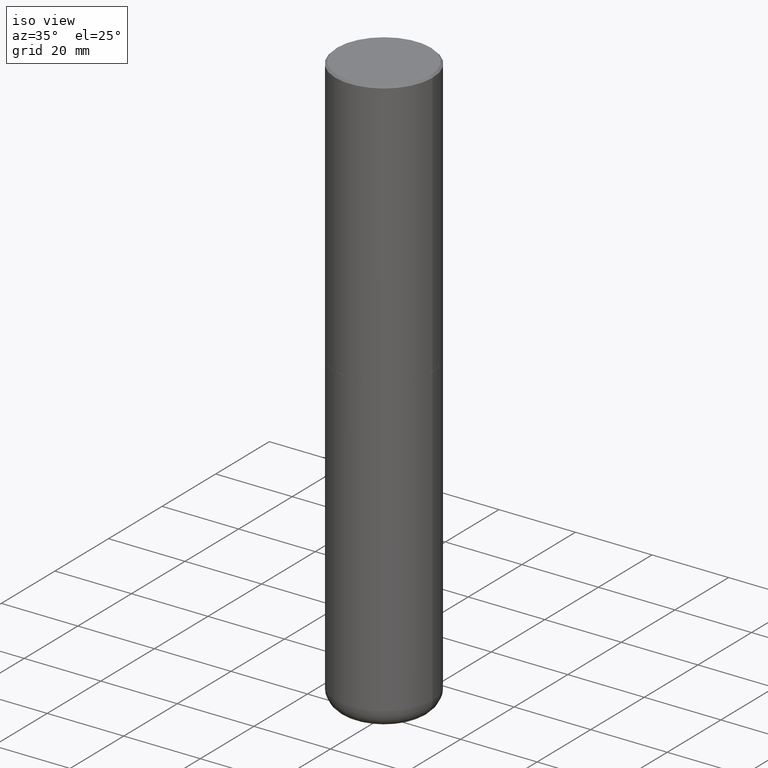
[diagram: clean part render]
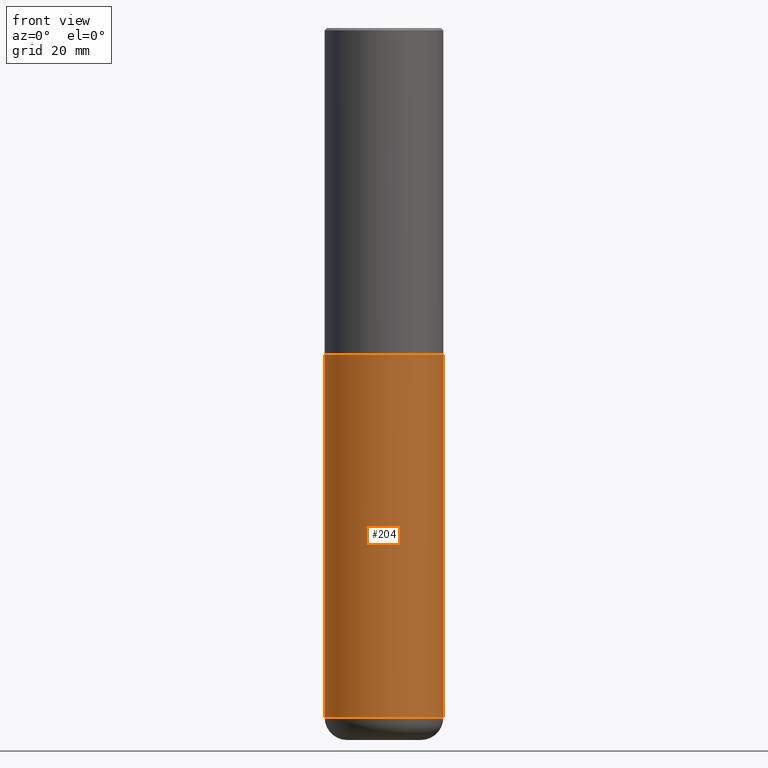
[diagram: tour spotlight — one face highlighted and labeled with its STEP entity id]
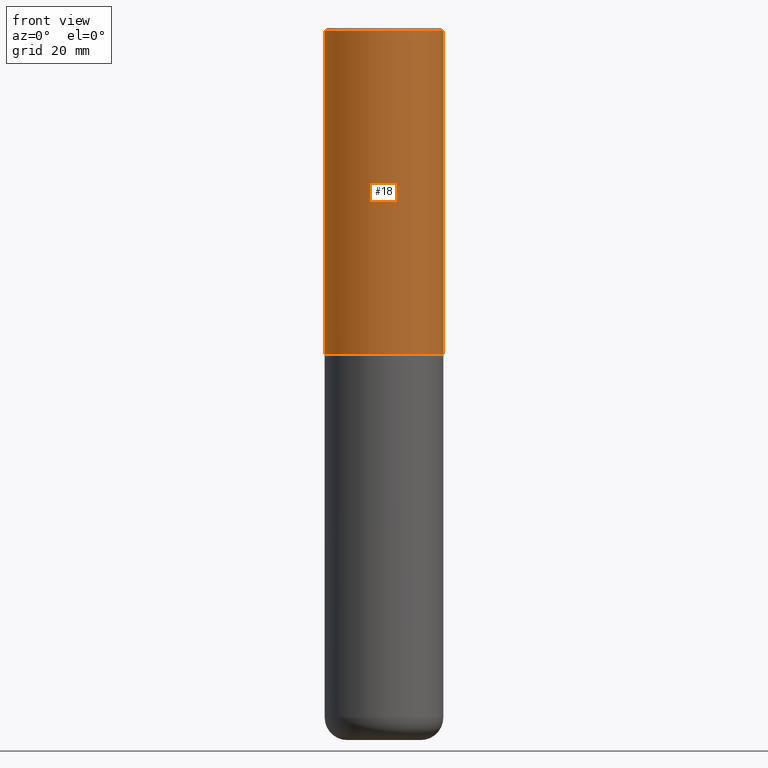
[diagram: tour spotlight — one face highlighted and labeled with its STEP entity id]
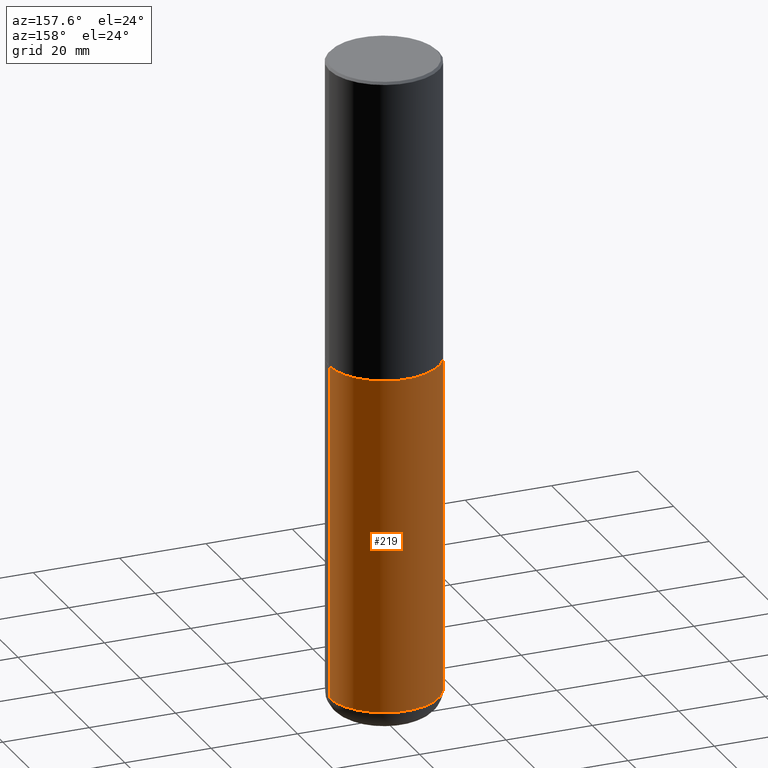
[diagram: tour spotlight — one face highlighted and labeled with its STEP entity id]
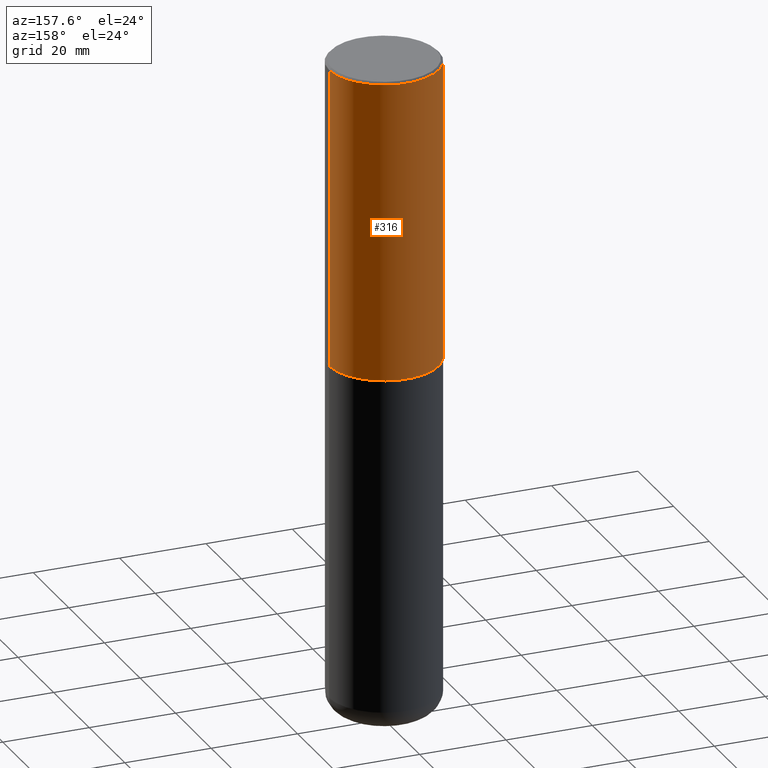
[diagram: tour spotlight — one face highlighted and labeled with its STEP entity id]
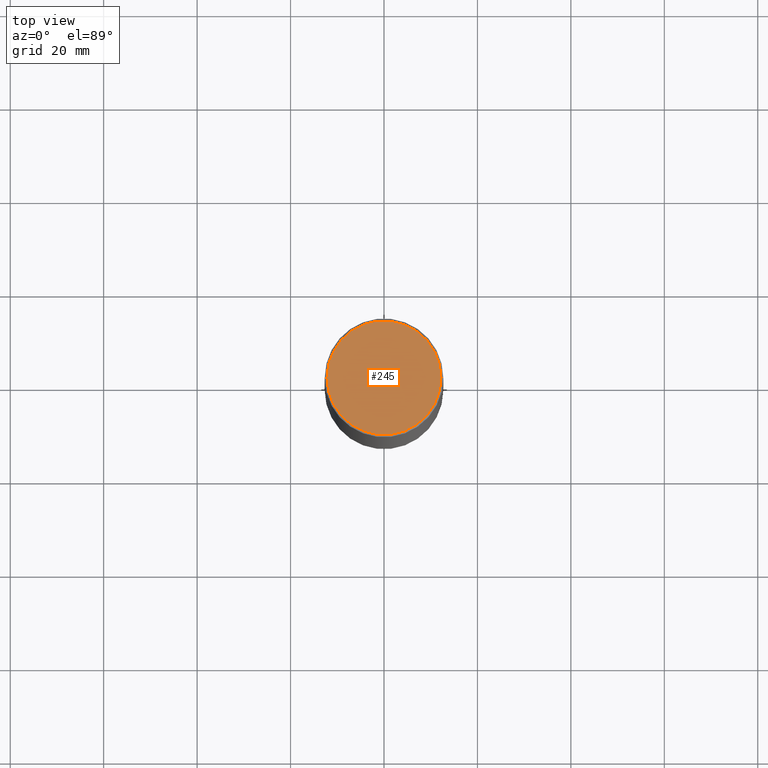
[diagram: tour spotlight — one face highlighted and labeled with its STEP entity id]
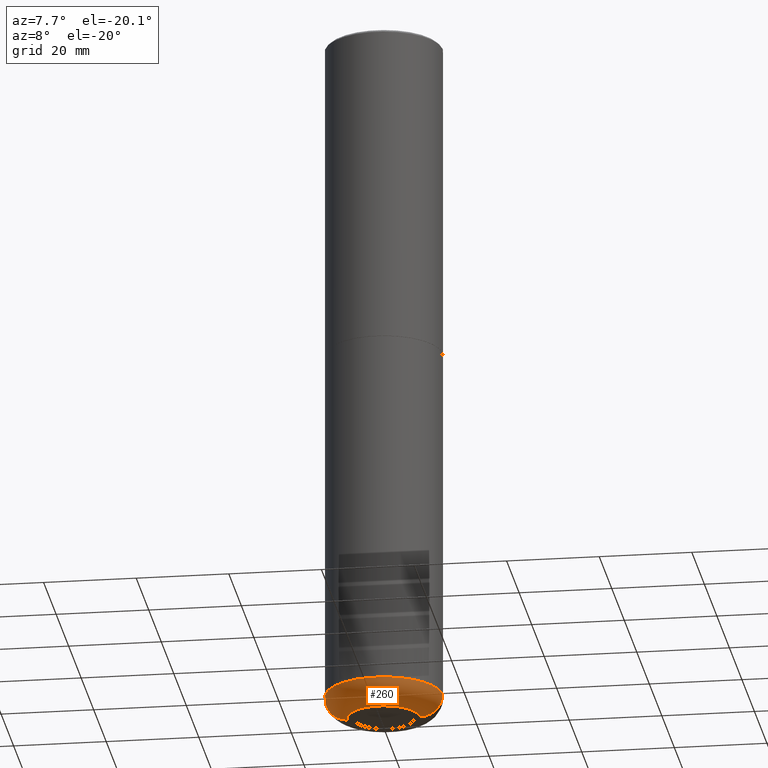
[diagram: tour spotlight — one face highlighted and labeled with its STEP entity id]
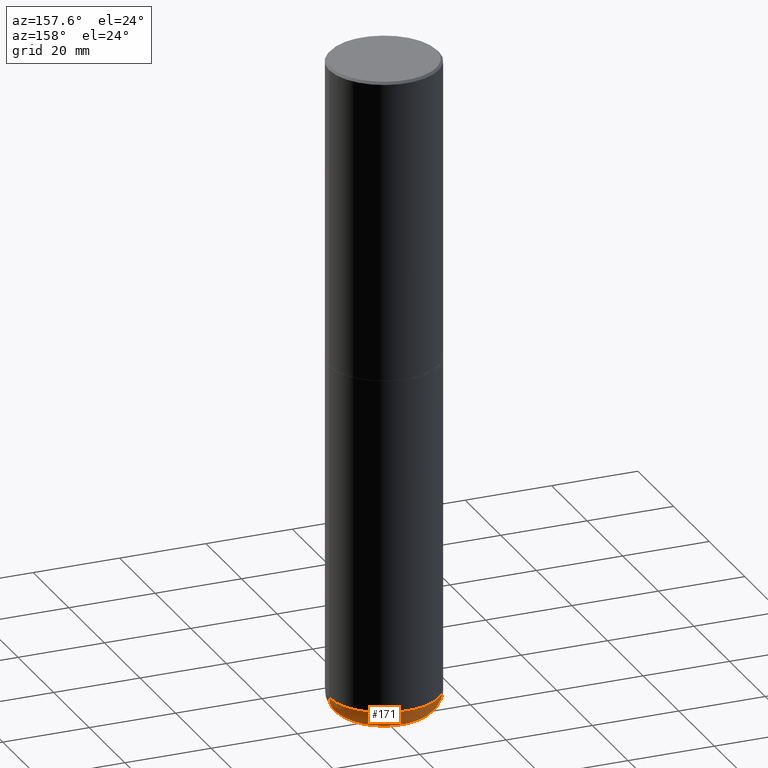
[diagram: tour spotlight — one face highlighted and labeled with its STEP entity id]
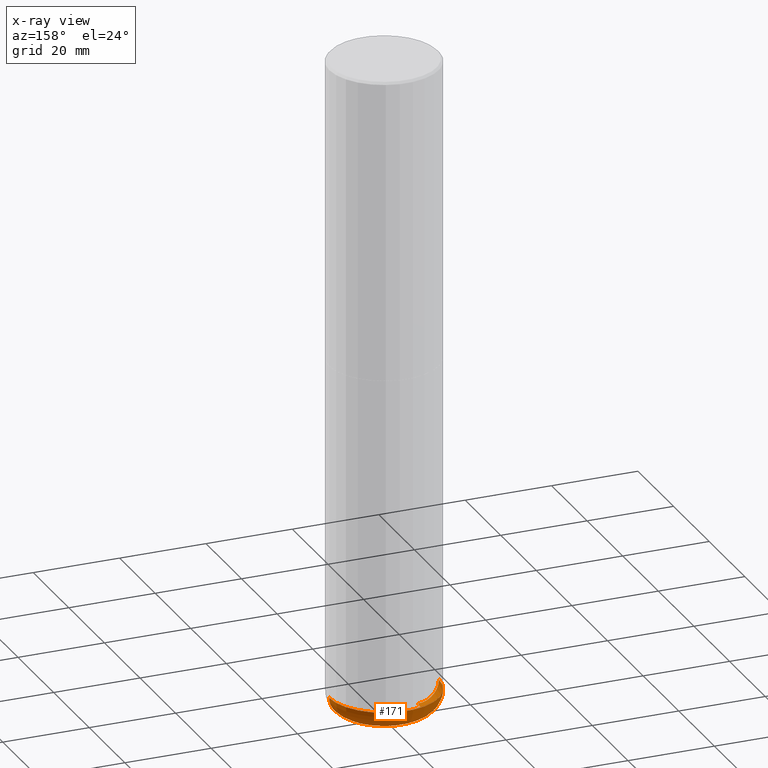
[diagram: x-ray of the same camera — body ghosted, this tour face saturated]
A machine part: a face-by-face anatomy tour. The part has 17 B-rep faces; the first image is the clean iso view, then the 7 largest visible faces are spotlighted one at a time (largest first), each with its STEP entity span.

Face 1 — front view, entity #204. In plain terms, the highlighted cylindrical surface (partial cylindrical patch) has radius 12.7 mm, axis along (-0, 0, 1).
Definition (entity closure, byte-faithful):
#7 = DIRECTION ( 'NONE',  ( 1.000000000000000000, -6.982962677686266711E-15, 4.876176775795935793E-29 ) ) ;
#8 = AXIS2_PLACEMENT_3D ( 'NONE', #250, #162, #203 ) ;
#43 = AXIS2_PLACEMENT_3D ( 'NONE', #229, #481, #232 ) ;
#45 = CARTESIAN_POINT ( 'NONE',  ( -0.5000000000000000000, -1.139083908121469718E-14, -5.810007234617806660 ) ) ;
#46 = CYLINDRICAL_SURFACE ( 'NONE', #197, 0.5000000000000000000 ) ;
#61 = EDGE_CURVE ( 'NONE', #148, #470, #68, .T. ) ;
#62 = DIRECTION ( 'NONE',  ( -2.445468806185136877E-29, 3.491481338843145188E-15, 1.000000000000000000 ) ) ;
#68 = CIRCLE ( 'NONE', #43, 0.5000000000000000000 ) ;
#72 = CARTESIAN_POINT ( 'NONE',  ( 0.5000000000000000000, -3.491481338843133355E-15, 2.438088387897967896E-29 ) ) ;
#73 = VERTEX_POINT ( 'NONE', #452 ) ;
#74 = CARTESIAN_POINT ( 'NONE',  ( 0.5000000000000000000, -2.377701317705487499E-14, -5.810007234617806660 ) ) ;
#87 = FACE_OUTER_BOUND ( 'NONE', #297, .T. ) ;
#89 = EDGE_CURVE ( 'NONE', #470, #110, #296, .T. ) ;
#110 = VERTEX_POINT ( 'NONE', #151 ) ;
#117 = ORIENTED_EDGE ( 'NONE', *, *, #418, .F. ) ;
#130 = CARTESIAN_POINT ( 'NONE',  ( -0.5000000000000000000, 3.552713678800500929E-15, -2.459467545127452891E-29 ) ) ;
#148 = VERTEX_POINT ( 'NONE', #45 ) ;
#151 = CARTESIAN_POINT ( 'NONE',  ( 0.5000000000000000000, -1.309305502066178637E-14, -2.750000000000000444 ) ) ;
#162 = DIRECTION ( 'NONE',  ( -2.445468806185136597E-29, 3.491481338843145583E-15, 1.000000000000000000 ) ) ;
#167 = LINE ( 'NONE', #130, #319 ) ;
#173 = ORIENTED_EDGE ( 'NONE', *, *, #89, .T. ) ;
#197 = AXIS2_PLACEMENT_3D ( 'NONE', #276, #234, #7 ) ;
#203 = DIRECTION ( 'NONE',  ( 1.000000000000000000, -6.982962677686266711E-15, 0.000000000000000000 ) ) ;
#204 = ADVANCED_FACE ( 'NONE', ( #87 ), #46, .T. ) ;
#212 = ORIENTED_EDGE ( 'NONE', *, *, #61, .T. ) ;
#229 = CARTESIAN_POINT ( 'NONE',  ( 1.420819145596781617E-28, -2.028553183821174163E-14, -5.810007234617806660 ) ) ;
#232 = DIRECTION ( 'NONE',  ( 1.000000000000000000, -6.982962677686262766E-15, 0.000000000000000000 ) ) ;
#234 = DIRECTION ( 'NONE',  ( -2.445468806185136597E-29, 3.491481338843145583E-15, 1.000000000000000000 ) ) ;
#250 = CARTESIAN_POINT ( 'NONE',  ( 6.725039217009125641E-29, -9.601573681818653015E-15, -2.750000000000000444 ) ) ;
#276 = CARTESIAN_POINT ( 'NONE',  ( 0.000000000000000000, 0.000000000000000000, 0.000000000000000000 ) ) ;
#296 = LINE ( 'NONE', #72, #471 ) ;
#297 = EDGE_LOOP ( 'NONE', ( #318, #212, #173, #117 ) ) ;
#318 = ORIENTED_EDGE ( 'NONE', *, *, #451, .F. ) ;
#319 = VECTOR ( 'NONE', #62, 39.37007874015748143 ) ;
#402 = DIRECTION ( 'NONE',  ( -2.445468806185136877E-29, 3.491481338843145188E-15, 1.000000000000000000 ) ) ;
#418 = EDGE_CURVE ( 'NONE', #73, #110, #472, .T. ) ;
#451 = EDGE_CURVE ( 'NONE', #148, #73, #167, .T. ) ;
#452 = CARTESIAN_POINT ( 'NONE',  ( -0.5000000000000000000, -1.139083908121469718E-14, -2.750000000000000444 ) ) ;
#470 = VERTEX_POINT ( 'NONE', #74 ) ;
#471 = VECTOR ( 'NONE', #402, 39.37007874015748143 ) ;
#472 = CIRCLE ( 'NONE', #8, 0.5000000000000000000 ) ;
#481 = DIRECTION ( 'NONE',  ( -2.445468806185136597E-29, 3.491481338843145583E-15, 1.000000000000000000 ) ) ;

Face 2 — front view, entity #18. In plain terms, the highlighted cylindrical surface (partial cylindrical patch) has radius 12.7 mm, axis along (-0, 0, 1).
Definition (entity closure, byte-faithful):
#11 = CYLINDRICAL_SURFACE ( 'NONE', #425, 0.4999999999999995004 ) ;
#15 = CIRCLE ( 'NONE', #163, 0.5000000000000000000 ) ;
#18 = ADVANCED_FACE ( 'NONE', ( #352 ), #11, .T. ) ;
#29 = ORIENTED_EDGE ( 'NONE', *, *, #342, .F. ) ;
#37 = DIRECTION ( 'NONE',  ( -2.445468806185136877E-29, 3.491481338843145188E-15, 1.000000000000000000 ) ) ;
#57 = EDGE_CURVE ( 'NONE', #139, #126, #118, .T. ) ;
#80 = VERTEX_POINT ( 'NONE', #144 ) ;
#97 = EDGE_CURVE ( 'NONE', #334, #126, #187, .T. ) ;
#102 = ORIENTED_EDGE ( 'NONE', *, *, #57, .T. ) ;
#104 = ORIENTED_EDGE ( 'NONE', *, *, #97, .F. ) ;
#118 = LINE ( 'NONE', #147, #196 ) ;
#126 = VERTEX_POINT ( 'NONE', #447 ) ;
#139 = VERTEX_POINT ( 'NONE', #377 ) ;
#144 = CARTESIAN_POINT ( 'NONE',  ( -0.5000000000000000000, -1.281242234827831779E-15, -2.749000000000000554 ) ) ;
#147 = CARTESIAN_POINT ( 'NONE',  ( 0.4999999999999995004, -3.491481338843130200E-15, 2.438088387897965374E-29 ) ) ;
#163 = AXIS2_PLACEMENT_3D ( 'NONE', #365, #480, #211 ) ;
#187 = CIRCLE ( 'NONE', #464, 0.4999999999999990563 ) ;
#195 = CARTESIAN_POINT ( 'NONE',  ( 0.000000000000000000, 0.000000000000000000, 0.000000000000000000 ) ) ;
#196 = VECTOR ( 'NONE', #223, 39.37007874015748143 ) ;
#211 = DIRECTION ( 'NONE',  ( 1.000000000000000000, -6.982962677686266711E-15, 0.000000000000000000 ) ) ;
#223 = DIRECTION ( 'NONE',  ( -2.445468806185136877E-29, 3.491481338843145188E-15, 1.000000000000000000 ) ) ;
#233 = DIRECTION ( 'NONE',  ( 1.000000000000000000, -6.982962677686266711E-15, 0.000000000000000000 ) ) ;
#253 = ORIENTED_EDGE ( 'NONE', *, *, #488, .T. ) ;
#298 = CARTESIAN_POINT ( 'NONE',  ( 4.890937612370322204E-31, -6.982962677686361867E-17, -0.02000000000000020164 ) ) ;
#309 = DIRECTION ( 'NONE',  ( 1.000000000000000000, -6.982962677686267499E-15, 4.876176775795935793E-29 ) ) ;
#334 = VERTEX_POINT ( 'NONE', #373 ) ;
#342 = EDGE_CURVE ( 'NONE', #80, #334, #489, .T. ) ;
#347 = DIRECTION ( 'NONE',  ( -2.445468806185136597E-29, 3.491481338843145583E-15, 1.000000000000000000 ) ) ;
#352 = FACE_OUTER_BOUND ( 'NONE', #393, .T. ) ;
#365 = CARTESIAN_POINT ( 'NONE',  ( 6.722593748202942280E-29, -9.598082200479810007E-15, -2.749000000000000554 ) ) ;
#373 = CARTESIAN_POINT ( 'NONE',  ( -0.4999999999999990563, 3.421651712066262957E-15, -0.02000000000000020164 ) ) ;
#377 = CARTESIAN_POINT ( 'NONE',  ( 0.5000000000000000000, -1.308956353932294336E-14, -2.749000000000000554 ) ) ;
#393 = EDGE_LOOP ( 'NONE', ( #29, #253, #102, #104 ) ) ;
#408 = VECTOR ( 'NONE', #37, 39.37007874015748143 ) ;
#425 = AXIS2_PLACEMENT_3D ( 'NONE', #195, #347, #309 ) ;
#447 = CARTESIAN_POINT ( 'NONE',  ( 0.4999999999999990563, -3.500078625662622769E-15, -0.02000000000000020164 ) ) ;
#449 = DIRECTION ( 'NONE',  ( -2.445468806185136597E-29, 3.491481338843145583E-15, 1.000000000000000000 ) ) ;
#464 = AXIS2_PLACEMENT_3D ( 'NONE', #298, #449, #233 ) ;
#480 = DIRECTION ( 'NONE',  ( -2.445468806185136597E-29, 3.491481338843145583E-15, 1.000000000000000000 ) ) ;
#486 = CARTESIAN_POINT ( 'NONE',  ( -0.4999999999999995004, 3.552713678800497379E-15, -2.459467545127450649E-29 ) ) ;
#488 = EDGE_CURVE ( 'NONE', #80, #139, #15, .T. ) ;
#489 = LINE ( 'NONE', #486, #408 ) ;

Face 3 — auxiliary view, entity #219. In plain terms, the highlighted cylindrical surface (partial cylindrical patch) has radius 12.7 mm, axis along (-0, 0, 1).
Definition (entity closure, byte-faithful):
#10 = CARTESIAN_POINT ( 'NONE',  ( 0.000000000000000000, 0.000000000000000000, 0.000000000000000000 ) ) ;
#45 = CARTESIAN_POINT ( 'NONE',  ( -0.5000000000000000000, -1.139083908121469718E-14, -5.810007234617806660 ) ) ;
#62 = DIRECTION ( 'NONE',  ( -2.445468806185136877E-29, 3.491481338843145188E-15, 1.000000000000000000 ) ) ;
#72 = CARTESIAN_POINT ( 'NONE',  ( 0.5000000000000000000, -3.491481338843133355E-15, 2.438088387897967896E-29 ) ) ;
#73 = VERTEX_POINT ( 'NONE', #452 ) ;
#74 = CARTESIAN_POINT ( 'NONE',  ( 0.5000000000000000000, -2.377701317705487499E-14, -5.810007234617806660 ) ) ;
#81 = DIRECTION ( 'NONE',  ( -2.445468806185136597E-29, 3.491481338843145583E-15, 1.000000000000000000 ) ) ;
#89 = EDGE_CURVE ( 'NONE', #470, #110, #296, .T. ) ;
#90 = EDGE_CURVE ( 'NONE', #470, #148, #396, .T. ) ;
#92 = DIRECTION ( 'NONE',  ( -2.445468806185136597E-29, 3.491481338843145583E-15, 1.000000000000000000 ) ) ;
#110 = VERTEX_POINT ( 'NONE', #151 ) ;
#130 = CARTESIAN_POINT ( 'NONE',  ( -0.5000000000000000000, 3.552713678800500929E-15, -2.459467545127452891E-29 ) ) ;
#133 = ORIENTED_EDGE ( 'NONE', *, *, #90, .T. ) ;
#148 = VERTEX_POINT ( 'NONE', #45 ) ;
#151 = CARTESIAN_POINT ( 'NONE',  ( 0.5000000000000000000, -1.309305502066178637E-14, -2.750000000000000444 ) ) ;
#159 = DIRECTION ( 'NONE',  ( -2.445468806185136597E-29, 3.491481338843145583E-15, 1.000000000000000000 ) ) ;
#161 = CYLINDRICAL_SURFACE ( 'NONE', #465, 0.5000000000000000000 ) ;
#167 = LINE ( 'NONE', #130, #319 ) ;
#189 = ORIENTED_EDGE ( 'NONE', *, *, #89, .F. ) ;
#219 = ADVANCED_FACE ( 'NONE', ( #453 ), #161, .T. ) ;
#241 = DIRECTION ( 'NONE',  ( 1.000000000000000000, -6.982962677686266711E-15, 0.000000000000000000 ) ) ;
#257 = ORIENTED_EDGE ( 'NONE', *, *, #283, .F. ) ;
#265 = AXIS2_PLACEMENT_3D ( 'NONE', #405, #81, #304 ) ;
#266 = CIRCLE ( 'NONE', #315, 0.5000000000000000000 ) ;
#283 = EDGE_CURVE ( 'NONE', #110, #73, #266, .T. ) ;
#296 = LINE ( 'NONE', #72, #471 ) ;
#304 = DIRECTION ( 'NONE',  ( 1.000000000000000000, -6.982962677686262766E-15, 0.000000000000000000 ) ) ;
#315 = AXIS2_PLACEMENT_3D ( 'NONE', #413, #92, #241 ) ;
#319 = VECTOR ( 'NONE', #62, 39.37007874015748143 ) ;
#396 = CIRCLE ( 'NONE', #265, 0.5000000000000000000 ) ;
#402 = DIRECTION ( 'NONE',  ( -2.445468806185136877E-29, 3.491481338843145188E-15, 1.000000000000000000 ) ) ;
#405 = CARTESIAN_POINT ( 'NONE',  ( 1.420819145596781617E-28, -2.028553183821174163E-14, -5.810007234617806660 ) ) ;
#413 = CARTESIAN_POINT ( 'NONE',  ( 6.725039217009125641E-29, -9.601573681818653015E-15, -2.750000000000000444 ) ) ;
#422 = DIRECTION ( 'NONE',  ( 1.000000000000000000, -6.982962677686266711E-15, 4.876176775795935793E-29 ) ) ;
#445 = EDGE_LOOP ( 'NONE', ( #133, #474, #257, #189 ) ) ;
#451 = EDGE_CURVE ( 'NONE', #148, #73, #167, .T. ) ;
#452 = CARTESIAN_POINT ( 'NONE',  ( -0.5000000000000000000, -1.139083908121469718E-14, -2.750000000000000444 ) ) ;
#453 = FACE_OUTER_BOUND ( 'NONE', #445, .T. ) ;
#465 = AXIS2_PLACEMENT_3D ( 'NONE', #10, #159, #422 ) ;
#470 = VERTEX_POINT ( 'NONE', #74 ) ;
#471 = VECTOR ( 'NONE', #402, 39.37007874015748143 ) ;
#474 = ORIENTED_EDGE ( 'NONE', *, *, #451, .T. ) ;

Face 4 — auxiliary view, entity #316. In plain terms, the highlighted cylindrical surface (partial cylindrical patch) has radius 12.7 mm, axis along (-0, 0, 1).
Definition (entity closure, byte-faithful):
#33 = EDGE_CURVE ( 'NONE', #139, #80, #307, .T. ) ;
#37 = DIRECTION ( 'NONE',  ( -2.445468806185136877E-29, 3.491481338843145188E-15, 1.000000000000000000 ) ) ;
#40 = EDGE_CURVE ( 'NONE', #126, #334, #131, .T. ) ;
#41 = DIRECTION ( 'NONE',  ( 1.000000000000000000, -6.982962677686266711E-15, 0.000000000000000000 ) ) ;
#57 = EDGE_CURVE ( 'NONE', #139, #126, #118, .T. ) ;
#77 = AXIS2_PLACEMENT_3D ( 'NONE', #249, #230, #407 ) ;
#80 = VERTEX_POINT ( 'NONE', #144 ) ;
#95 = DIRECTION ( 'NONE',  ( 1.000000000000000000, -6.982962677686266711E-15, 0.000000000000000000 ) ) ;
#118 = LINE ( 'NONE', #147, #196 ) ;
#126 = VERTEX_POINT ( 'NONE', #447 ) ;
#131 = CIRCLE ( 'NONE', #226, 0.4999999999999990563 ) ;
#134 = CYLINDRICAL_SURFACE ( 'NONE', #77, 0.4999999999999995004 ) ;
#139 = VERTEX_POINT ( 'NONE', #377 ) ;
#144 = CARTESIAN_POINT ( 'NONE',  ( -0.5000000000000000000, -1.281242234827831779E-15, -2.749000000000000554 ) ) ;
#147 = CARTESIAN_POINT ( 'NONE',  ( 0.4999999999999995004, -3.491481338843130200E-15, 2.438088387897965374E-29 ) ) ;
#196 = VECTOR ( 'NONE', #223, 39.37007874015748143 ) ;
#223 = DIRECTION ( 'NONE',  ( -2.445468806185136877E-29, 3.491481338843145188E-15, 1.000000000000000000 ) ) ;
#226 = AXIS2_PLACEMENT_3D ( 'NONE', #359, #333, #41 ) ;
#230 = DIRECTION ( 'NONE',  ( -2.445468806185136597E-29, 3.491481338843145583E-15, 1.000000000000000000 ) ) ;
#238 = ORIENTED_EDGE ( 'NONE', *, *, #40, .F. ) ;
#249 = CARTESIAN_POINT ( 'NONE',  ( 0.000000000000000000, 0.000000000000000000, 0.000000000000000000 ) ) ;
#275 = CARTESIAN_POINT ( 'NONE',  ( 6.722593748202942280E-29, -9.598082200479810007E-15, -2.749000000000000554 ) ) ;
#307 = CIRCLE ( 'NONE', #430, 0.5000000000000000000 ) ;
#316 = ADVANCED_FACE ( 'NONE', ( #386 ), #134, .T. ) ;
#333 = DIRECTION ( 'NONE',  ( -2.445468806185136597E-29, 3.491481338843145583E-15, 1.000000000000000000 ) ) ;
#334 = VERTEX_POINT ( 'NONE', #373 ) ;
#342 = EDGE_CURVE ( 'NONE', #80, #334, #489, .T. ) ;
#344 = EDGE_LOOP ( 'NONE', ( #399, #459, #238, #476 ) ) ;
#359 = CARTESIAN_POINT ( 'NONE',  ( 4.890937612370322204E-31, -6.982962677686361867E-17, -0.02000000000000020164 ) ) ;
#373 = CARTESIAN_POINT ( 'NONE',  ( -0.4999999999999990563, 3.421651712066262957E-15, -0.02000000000000020164 ) ) ;
#377 = CARTESIAN_POINT ( 'NONE',  ( 0.5000000000000000000, -1.308956353932294336E-14, -2.749000000000000554 ) ) ;
#386 = FACE_OUTER_BOUND ( 'NONE', #344, .T. ) ;
#399 = ORIENTED_EDGE ( 'NONE', *, *, #33, .T. ) ;
#407 = DIRECTION ( 'NONE',  ( 1.000000000000000000, -6.982962677686267499E-15, 4.876176775795935793E-29 ) ) ;
#408 = VECTOR ( 'NONE', #37, 39.37007874015748143 ) ;
#421 = DIRECTION ( 'NONE',  ( -2.445468806185136597E-29, 3.491481338843145583E-15, 1.000000000000000000 ) ) ;
#430 = AXIS2_PLACEMENT_3D ( 'NONE', #275, #421, #95 ) ;
#447 = CARTESIAN_POINT ( 'NONE',  ( 0.4999999999999990563, -3.500078625662622769E-15, -0.02000000000000020164 ) ) ;
#459 = ORIENTED_EDGE ( 'NONE', *, *, #342, .T. ) ;
#476 = ORIENTED_EDGE ( 'NONE', *, *, #57, .F. ) ;
#486 = CARTESIAN_POINT ( 'NONE',  ( -0.4999999999999995004, 3.552713678800497379E-15, -2.459467545127450649E-29 ) ) ;
#489 = LINE ( 'NONE', #486, #408 ) ;

Face 5 — top view, entity #245. In plain terms, the highlighted planar face has unit normal (0, -0, -1).
Definition (entity closure, byte-faithful):
#53 = EDGE_CURVE ( 'NONE', #135, #482, #170, .T. ) ;
#63 = CARTESIAN_POINT ( 'NONE',  ( 0.4799999999999988165, -3.396558832296475394E-15, 1.707404996042524007E-17 ) ) ;
#64 = ORIENTED_EDGE ( 'NONE', *, *, #53, .T. ) ;
#109 = CARTESIAN_POINT ( 'NONE',  ( -4.175405657340879278E-46, 5.961372681521788801E-32, 1.707404996040164512E-17 ) ) ;
#132 = AXIS2_PLACEMENT_3D ( 'NONE', #267, #483, #228 ) ;
#135 = VERTEX_POINT ( 'NONE', #186 ) ;
#152 = PLANE ( 'NONE',  #281 ) ;
#170 = CIRCLE ( 'NONE', #214, 0.4799999999999988165 ) ;
#186 = CARTESIAN_POINT ( 'NONE',  ( -0.4799999999999988165, 3.386736898677831703E-15, 1.707404996037808406E-17 ) ) ;
#192 = ORIENTED_EDGE ( 'NONE', *, *, #317, .T. ) ;
#214 = AXIS2_PLACEMENT_3D ( 'NONE', #109, #410, #484 ) ;
#228 = DIRECTION ( 'NONE',  ( 1.000000000000000000, -6.982962677686267499E-15, 4.876431871984425487E-29 ) ) ;
#237 = DIRECTION ( 'NONE',  ( 2.438088387897960049E-29, -3.491481338843145188E-15, -1.000000000000000000 ) ) ;
#245 = ADVANCED_FACE ( 'NONE', ( #353 ), #152, .F. ) ;
#267 = CARTESIAN_POINT ( 'NONE',  ( -4.175405657340879278E-46, 5.961372681521788801E-32, 1.707404996040164512E-17 ) ) ;
#281 = AXIS2_PLACEMENT_3D ( 'NONE', #420, #237, #456 ) ;
#294 = EDGE_LOOP ( 'NONE', ( #64, #192 ) ) ;
#317 = EDGE_CURVE ( 'NONE', #482, #135, #338, .T. ) ;
#338 = CIRCLE ( 'NONE', #132, 0.4799999999999988165 ) ;
#353 = FACE_OUTER_BOUND ( 'NONE', #294, .T. ) ;
#410 = DIRECTION ( 'NONE',  ( -2.445468806185136597E-29, 3.491481338843145583E-15, 1.000000000000000000 ) ) ;
#420 = CARTESIAN_POINT ( 'NONE',  ( 3.351822085289399659E-15, 0.4799999999999988165, -1.667374017664504893E-15 ) ) ;
#456 = DIRECTION ( 'NONE',  ( -1.000000000000000000, 6.982962677686265922E-15, -4.876176775795935793E-29 ) ) ;
#482 = VERTEX_POINT ( 'NONE', #63 ) ;
#483 = DIRECTION ( 'NONE',  ( -2.445468806185136597E-29, 3.491481338843145583E-15, 1.000000000000000000 ) ) ;
#484 = DIRECTION ( 'NONE',  ( 1.000000000000000000, -6.982962677686267499E-15, 4.876431871984425487E-29 ) ) ;

Face 6 — auxiliary view, entity #260. In plain terms, the highlighted toroidal blend (fillet) surface has major radius 7.874 mm and minor (blend) radius 4.826 mm.
Definition (entity closure, byte-faithful):
#14 = AXIS2_PLACEMENT_3D ( 'NONE', #264, #378, #268 ) ;
#31 = ORIENTED_EDGE ( 'NONE', *, *, #113, .F. ) ;
#43 = AXIS2_PLACEMENT_3D ( 'NONE', #229, #481, #232 ) ;
#44 = CIRCLE ( 'NONE', #478, 0.3083419582553103000 ) ;
#45 = CARTESIAN_POINT ( 'NONE',  ( -0.5000000000000000000, -1.139083908121469718E-14, -5.810007234617806660 ) ) ;
#48 = DIRECTION ( 'NONE',  ( 1.000000000000000000, -6.982962677686269077E-15, 4.883557194083113462E-29 ) ) ;
#61 = EDGE_CURVE ( 'NONE', #148, #470, #68, .T. ) ;
#68 = CIRCLE ( 'NONE', #43, 0.5000000000000000000 ) ;
#74 = CARTESIAN_POINT ( 'NONE',  ( 0.5000000000000000000, -2.377701317705487499E-14, -5.810007234617806660 ) ) ;
#88 = VERTEX_POINT ( 'NONE', #259 ) ;
#96 = DIRECTION ( 'NONE',  ( -2.445468806185136597E-29, 3.491481338843145583E-15, 1.000000000000000000 ) ) ;
#113 = EDGE_CURVE ( 'NONE', #88, #148, #314, .T. ) ;
#120 = CARTESIAN_POINT ( 'NONE',  ( 1.420819145596781617E-28, -2.028553183821174163E-14, -5.810007234617806660 ) ) ;
#129 = DIRECTION ( 'NONE',  ( 1.000000000000000000, -6.982962677686263555E-15, 0.000000000000000000 ) ) ;
#145 = VERTEX_POINT ( 'NONE', #337 ) ;
#148 = VERTEX_POINT ( 'NONE', #45 ) ;
#179 = EDGE_CURVE ( 'NONE', #145, #470, #397, .T. ) ;
#229 = CARTESIAN_POINT ( 'NONE',  ( 1.420819145596781617E-28, -2.028553183821174163E-14, -5.810007234617806660 ) ) ;
#232 = DIRECTION ( 'NONE',  ( 1.000000000000000000, -6.982962677686262766E-15, 0.000000000000000000 ) ) ;
#235 = FACE_OUTER_BOUND ( 'NONE', #361, .T. ) ;
#259 = CARTESIAN_POINT ( 'NONE',  ( -0.3083419582553103000, -1.774540240339328316E-14, -5.999999999999999112 ) ) ;
#260 = ADVANCED_FACE ( 'NONE', ( #235 ), #358, .T. ) ;
#264 = CARTESIAN_POINT ( 'NONE',  ( -0.3100000000000003864, -1.808284935735543068E-14, -5.810007234617806660 ) ) ;
#268 = DIRECTION ( 'NONE',  ( -1.000000000000000000, 7.105427357600996337E-15, 0.000000000000000000 ) ) ;
#292 = CARTESIAN_POINT ( 'NONE',  ( 0.3100000000000003864, -2.245025026829448810E-14, -5.810007234617806660 ) ) ;
#305 = ORIENTED_EDGE ( 'NONE', *, *, #61, .F. ) ;
#312 = EDGE_CURVE ( 'NONE', #88, #145, #44, .T. ) ;
#314 = CIRCLE ( 'NONE', #14, 0.1900000000000003075 ) ;
#330 = ORIENTED_EDGE ( 'NONE', *, *, #179, .T. ) ;
#337 = CARTESIAN_POINT ( 'NONE',  ( 0.3083419582553103000, -2.310202841952039930E-14, -5.999999999999999112 ) ) ;
#358 = TOROIDAL_SURFACE ( 'NONE', #438, 0.3100000000000003864, 0.1900000000000002520 ) ;
#361 = EDGE_LOOP ( 'NONE', ( #31, #437, #330, #305 ) ) ;
#378 = DIRECTION ( 'NONE',  ( 7.105427357601001859E-15, 1.000000000000000000, -3.491481338843145583E-15 ) ) ;
#397 = CIRCLE ( 'NONE', #427, 0.1900000000000003075 ) ;
#427 = AXIS2_PLACEMENT_3D ( 'NONE', #292, #492, #440 ) ;
#437 = ORIENTED_EDGE ( 'NONE', *, *, #312, .T. ) ;
#438 = AXIS2_PLACEMENT_3D ( 'NONE', #120, #463, #48 ) ;
#440 = DIRECTION ( 'NONE',  ( 1.000000000000000000, -6.982962677686270655E-15, 0.000000000000000000 ) ) ;
#463 = DIRECTION ( 'NONE',  ( -2.445468806185136597E-29, 3.491481338843145583E-15, 1.000000000000000000 ) ) ;
#470 = VERTEX_POINT ( 'NONE', #74 ) ;
#473 = CARTESIAN_POINT ( 'NONE',  ( 1.467281283711081734E-28, -2.094888803305886955E-14, -5.999999999999999112 ) ) ;
#478 = AXIS2_PLACEMENT_3D ( 'NONE', #473, #96, #129 ) ;
#481 = DIRECTION ( 'NONE',  ( -2.445468806185136597E-29, 3.491481338843145583E-15, 1.000000000000000000 ) ) ;
#492 = DIRECTION ( 'NONE',  ( -6.982962677686266711E-15, -1.000000000000000000, 3.491481338843145583E-15 ) ) ;

Face 7 — auxiliary view, entity #171. An x-ray twin of the same camera follows (body ghosted, this face saturated) — the face is partly hidden behind the body. In plain terms, the highlighted toroidal blend (fillet) surface has major radius 7.874 mm and minor (blend) radius 4.826 mm.
Definition (entity closure, byte-faithful):
#2 = DIRECTION ( 'NONE',  ( 1.000000000000000000, -6.982962677686269077E-15, 4.883557194083113462E-29 ) ) ;
#14 = AXIS2_PLACEMENT_3D ( 'NONE', #264, #378, #268 ) ;
#35 = EDGE_CURVE ( 'NONE', #145, #88, #328, .T. ) ;
#38 = FACE_OUTER_BOUND ( 'NONE', #154, .T. ) ;
#45 = CARTESIAN_POINT ( 'NONE',  ( -0.5000000000000000000, -1.139083908121469718E-14, -5.810007234617806660 ) ) ;
#74 = CARTESIAN_POINT ( 'NONE',  ( 0.5000000000000000000, -2.377701317705487499E-14, -5.810007234617806660 ) ) ;
#75 = TOROIDAL_SURFACE ( 'NONE', #348, 0.3100000000000003864, 0.1900000000000002520 ) ;
#81 = DIRECTION ( 'NONE',  ( -2.445468806185136597E-29, 3.491481338843145583E-15, 1.000000000000000000 ) ) ;
#84 = ORIENTED_EDGE ( 'NONE', *, *, #35, .T. ) ;
#88 = VERTEX_POINT ( 'NONE', #259 ) ;
#90 = EDGE_CURVE ( 'NONE', #470, #148, #396, .T. ) ;
#106 = ORIENTED_EDGE ( 'NONE', *, *, #179, .F. ) ;
#113 = EDGE_CURVE ( 'NONE', #88, #148, #314, .T. ) ;
#145 = VERTEX_POINT ( 'NONE', #337 ) ;
#148 = VERTEX_POINT ( 'NONE', #45 ) ;
#154 = EDGE_LOOP ( 'NONE', ( #84, #321, #220, #106 ) ) ;
#171 = ADVANCED_FACE ( 'NONE', ( #38 ), #75, .T. ) ;
#179 = EDGE_CURVE ( 'NONE', #145, #470, #397, .T. ) ;
#220 = ORIENTED_EDGE ( 'NONE', *, *, #90, .F. ) ;
#242 = DIRECTION ( 'NONE',  ( -2.445468806185136597E-29, 3.491481338843145583E-15, 1.000000000000000000 ) ) ;
#259 = CARTESIAN_POINT ( 'NONE',  ( -0.3083419582553103000, -1.774540240339328316E-14, -5.999999999999999112 ) ) ;
#264 = CARTESIAN_POINT ( 'NONE',  ( -0.3100000000000003864, -1.808284935735543068E-14, -5.810007234617806660 ) ) ;
#265 = AXIS2_PLACEMENT_3D ( 'NONE', #405, #81, #304 ) ;
#268 = DIRECTION ( 'NONE',  ( -1.000000000000000000, 7.105427357600996337E-15, 0.000000000000000000 ) ) ;
#279 = AXIS2_PLACEMENT_3D ( 'NONE', #461, #242, #426 ) ;
#292 = CARTESIAN_POINT ( 'NONE',  ( 0.3100000000000003864, -2.245025026829448810E-14, -5.810007234617806660 ) ) ;
#304 = DIRECTION ( 'NONE',  ( 1.000000000000000000, -6.982962677686262766E-15, 0.000000000000000000 ) ) ;
#314 = CIRCLE ( 'NONE', #14, 0.1900000000000003075 ) ;
#321 = ORIENTED_EDGE ( 'NONE', *, *, #113, .T. ) ;
#328 = CIRCLE ( 'NONE', #279, 0.3083419582553103000 ) ;
#337 = CARTESIAN_POINT ( 'NONE',  ( 0.3083419582553103000, -2.310202841952039930E-14, -5.999999999999999112 ) ) ;
#341 = DIRECTION ( 'NONE',  ( -2.445468806185136597E-29, 3.491481338843145583E-15, 1.000000000000000000 ) ) ;
#348 = AXIS2_PLACEMENT_3D ( 'NONE', #412, #341, #2 ) ;
#378 = DIRECTION ( 'NONE',  ( 7.105427357601001859E-15, 1.000000000000000000, -3.491481338843145583E-15 ) ) ;
#396 = CIRCLE ( 'NONE', #265, 0.5000000000000000000 ) ;
#397 = CIRCLE ( 'NONE', #427, 0.1900000000000003075 ) ;
#405 = CARTESIAN_POINT ( 'NONE',  ( 1.420819145596781617E-28, -2.028553183821174163E-14, -5.810007234617806660 ) ) ;
#412 = CARTESIAN_POINT ( 'NONE',  ( 1.420819145596781617E-28, -2.028553183821174163E-14, -5.810007234617806660 ) ) ;
#426 = DIRECTION ( 'NONE',  ( 1.000000000000000000, -6.982962677686263555E-15, 0.000000000000000000 ) ) ;
#427 = AXIS2_PLACEMENT_3D ( 'NONE', #292, #492, #440 ) ;
#440 = DIRECTION ( 'NONE',  ( 1.000000000000000000, -6.982962677686270655E-15, 0.000000000000000000 ) ) ;
#461 = CARTESIAN_POINT ( 'NONE',  ( 1.467281283711081734E-28, -2.094888803305886955E-14, -5.999999999999999112 ) ) ;
#470 = VERTEX_POINT ( 'NONE', #74 ) ;
#492 = DIRECTION ( 'NONE',  ( -6.982962677686266711E-15, -1.000000000000000000, 3.491481338843145583E-15 ) ) ;